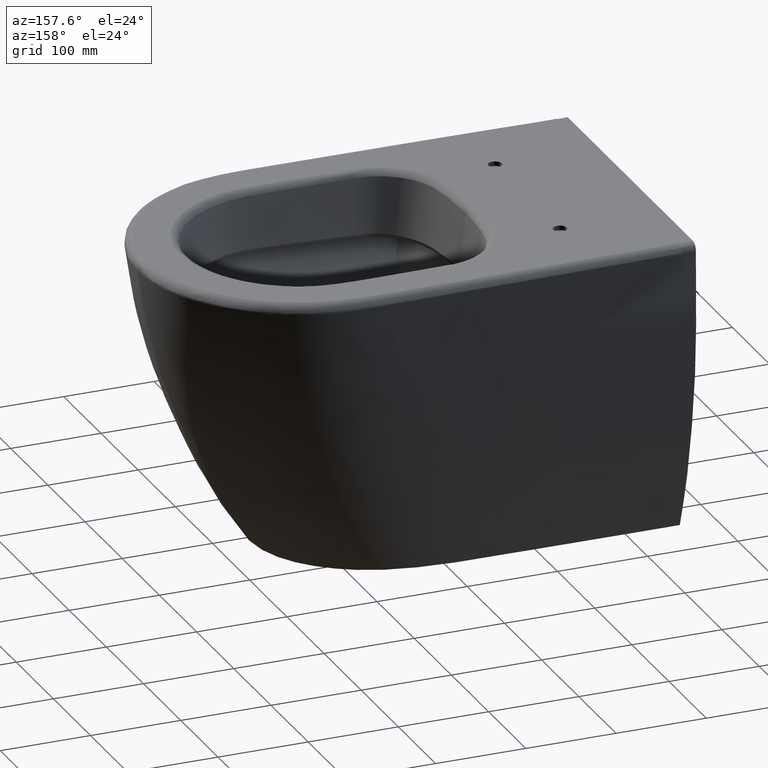
[diagram: clean part render]
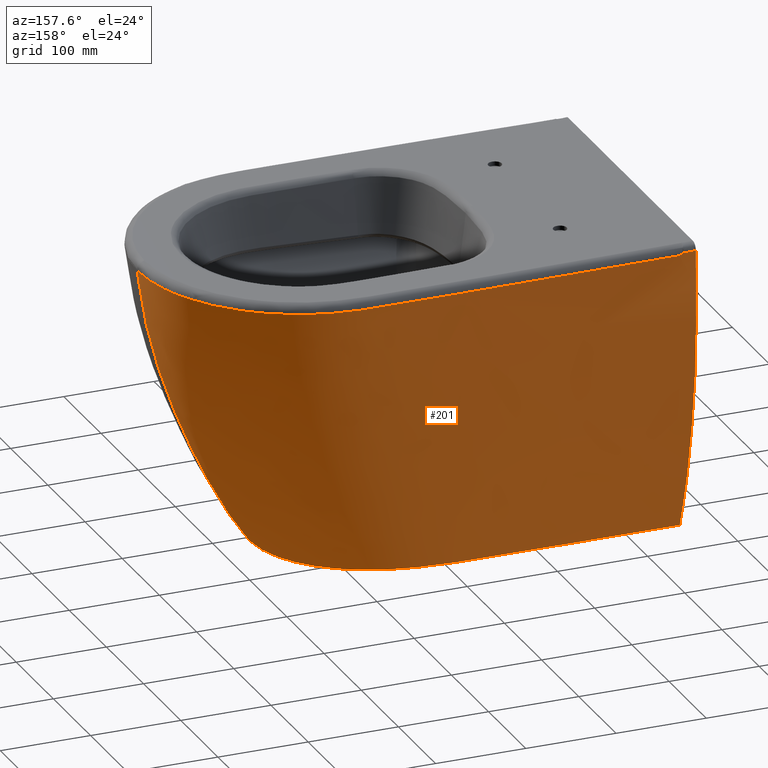
[diagram: same view with one face highlighted and labeled with its STEP entity id]
A machine part, auxiliary view. The second image highlights one B-rep face of the part: STEP entity #201.
In plain terms, the highlighted face is a freeform B-spline surface patch.
Its self-contained STEP definition (entity closure, byte-faithful):
#107=B_SPLINE_SURFACE_WITH_KNOTS('',3,3,((#12357,#12358,#12359,#12360,#12361,
#12362,#12363,#12364,#12365,#12366,#12367,#12368,#12369,#12370,#12371,#12372,
#12373,#12374,#12375,#12376,#12377),(#12378,#12379,#12380,#12381,#12382,
#12383,#12384,#12385,#12386,#12387,#12388,#12389,#12390,#12391,#12392,#12393,
#12394,#12395,#12396,#12397,#12398),(#12399,#12400,#12401,#12402,#12403,
#12404,#12405,#12406,#12407,#12408,#12409,#12410,#12411,#12412,#12413,#12414,
#12415,#12416,#12417,#12418,#12419),(#12420,#12421,#12422,#12423,#12424,
#12425,#12426,#12427,#12428,#12429,#12430,#12431,#12432,#12433,#12434,#12435,
#12436,#12437,#12438,#12439,#12440),(#12441,#12442,#12443,#12444,#12445,
#12446,#12447,#12448,#12449,#12450,#12451,#12452,#12453,#12454,#12455,#12456,
#12457,#12458,#12459,#12460,#12461),(#12462,#12463,#12464,#12465,#12466,
#12467,#12468,#12469,#12470,#12471,#12472,#12473,#12474,#12475,#12476,#12477,
#12478,#12479,#12480,#12481,#12482),(#12483,#12484,#12485,#12486,#12487,
#12488,#12489,#12490,#12491,#12492,#12493,#12494,#12495,#12496,#12497,#12498,
#12499,#12500,#12501,#12502,#12503),(#12504,#12505,#12506,#12507,#12508,
#12509,#12510,#12511,#12512,#12513,#12514,#12515,#12516,#12517,#12518,#12519,
#12520,#12521,#12522,#12523,#12524),(#12525,#12526,#12527,#12528,#12529,
#12530,#12531,#12532,#12533,#12534,#12535,#12536,#12537,#12538,#12539,#12540,
#12541,#12542,#12543,#12544,#12545),(#12546,#12547,#12548,#12549,#12550,
#12551,#12552,#12553,#12554,#12555,#12556,#12557,#12558,#12559,#12560,#12561,
#12562,#12563,#12564,#12565,#12566),(#12567,#12568,#12569,#12570,#12571,
#12572,#12573,#12574,#12575,#12576,#12577,#12578,#12579,#12580,#12581,#12582,
#12583,#12584,#12585,#12586,#12587),(#12588,#12589,#12590,#12591,#12592,
#12593,#12594,#12595,#12596,#12597,#12598,#12599,#12600,#12601,#12602,#12603,
#12604,#12605,#12606,#12607,#12608),(#12609,#12610,#12611,#12612,#12613,
#12614,#12615,#12616,#12617,#12618,#12619,#12620,#12621,#12622,#12623,#12624,
#12625,#12626,#12627,#12628,#12629),(#12630,#12631,#12632,#12633,#12634,
#12635,#12636,#12637,#12638,#12639,#12640,#12641,#12642,#12643,#12644,#12645,
#12646,#12647,#12648,#12649,#12650),(#12651,#12652,#12653,#12654,#12655,
#12656,#12657,#12658,#12659,#12660,#12661,#12662,#12663,#12664,#12665,#12666,
#12667,#12668,#12669,#12670,#12671),(#12672,#12673,#12674,#12675,#12676,
#12677,#12678,#12679,#12680,#12681,#12682,#12683,#12684,#12685,#12686,#12687,
#12688,#12689,#12690,#12691,#12692),(#12693,#12694,#12695,#12696,#12697,
#12698,#12699,#12700,#12701,#12702,#12703,#12704,#12705,#12706,#12707,#12708,
#12709,#12710,#12711,#12712,#12713),(#12714,#12715,#12716,#12717,#12718,
#12719,#12720,#12721,#12722,#12723,#12724,#12725,#12726,#12727,#12728,#12729,
#12730,#12731,#12732,#12733,#12734)),.UNSPECIFIED.,.F.,.F.,.F.,(4,1,1,1,
1,1,1,1,1,1,1,1,1,1,1,4),(4,1,1,1,1,1,1,1,1,1,1,1,1,1,1,3,4),(0.,0.0602111962712651,
0.0903167944068976,0.12042239254253,0.182507157675475,0.24459192280842,
0.306676687941365,0.36876145307431,0.430846218207255,0.461888600773728,
0.4929309833402,0.61710051360609,0.74127004387198,0.86543957413787,0.989609104403761,
1.),(0.,0.026636169053336,0.0623625613361962,0.118244261278682,0.230007661163653,
0.341771061048624,0.453534460933596,0.509416160876081,0.565297860818566,
0.677061260703538,0.732942960646023,0.788824660588509,0.816765510559751,
0.844706360530994,0.872647210502237,0.891752457481277,1.),.UNSPECIFIED.);
#201=ADVANCED_FACE('',(#279),#107,.F.);
#279=FACE_OUTER_BOUND('',#358,.T.);
#358=EDGE_LOOP('',(#652,#653,#654,#655,#656,#657,#658,#659,#660,#661,#662,
#663));
#652=ORIENTED_EDGE('',*,*,#1044,.F.);
#653=ORIENTED_EDGE('',*,*,#1072,.T.);
#654=ORIENTED_EDGE('',*,*,#1073,.F.);
#655=ORIENTED_EDGE('',*,*,#1074,.F.);
#656=ORIENTED_EDGE('',*,*,#1075,.F.);
#657=ORIENTED_EDGE('',*,*,#1076,.T.);
#658=ORIENTED_EDGE('',*,*,#1077,.T.);
#659=ORIENTED_EDGE('',*,*,#1078,.T.);
#660=ORIENTED_EDGE('',*,*,#961,.F.);
#661=ORIENTED_EDGE('',*,*,#960,.F.);
#662=ORIENTED_EDGE('',*,*,#959,.F.);
#663=ORIENTED_EDGE('',*,*,#1079,.T.);
#826=VERTEX_POINT('',#2615);
#827=VERTEX_POINT('',#2626);
#828=VERTEX_POINT('',#2635);
#829=VERTEX_POINT('',#2640);
#881=VERTEX_POINT('',#11126);
#883=VERTEX_POINT('',#11135);
#901=VERTEX_POINT('',#12283);
#902=VERTEX_POINT('',#12288);
#903=VERTEX_POINT('',#12293);
#904=VERTEX_POINT('',#12298);
#905=VERTEX_POINT('',#12303);
#906=VERTEX_POINT('',#12310);
#959=EDGE_CURVE('',#826,#827,#1149,.T.);
#960=EDGE_CURVE('',#827,#828,#1150,.T.);
#961=EDGE_CURVE('',#828,#829,#1151,.T.);
#1044=EDGE_CURVE('',#883,#881,#1220,.T.);
#1072=EDGE_CURVE('',#883,#901,#1241,.T.);
#1073=EDGE_CURVE('',#902,#901,#1242,.T.);
#1074=EDGE_CURVE('',#903,#902,#1243,.T.);
#1075=EDGE_CURVE('',#904,#903,#1244,.T.);
#1076=EDGE_CURVE('',#904,#905,#1245,.T.);
#1077=EDGE_CURVE('',#905,#906,#1246,.T.);
#1078=EDGE_CURVE('',#906,#829,#1247,.T.);
#1079=EDGE_CURVE('',#826,#881,#1248,.T.);
#1149=B_SPLINE_CURVE_WITH_KNOTS('',3,(#2616,#2617,#2618,#2619,#2620,#2621,
#2622,#2623,#2624,#2625),.UNSPECIFIED.,.F.,.F.,(4,2,2,2,4),(0.,0.25,0.499999999999999,
0.75,1.),.UNSPECIFIED.);
#1150=B_SPLINE_CURVE_WITH_KNOTS('',3,(#2627,#2628,#2629,#2630,#2631,#2632,
#2633,#2634),.UNSPECIFIED.,.F.,.F.,(4,1,1,1,1,4),(0.,0.271440327380571,
0.553746948231337,0.836053569082102,0.977206879507486,1.),.UNSPECIFIED.);
#1151=B_SPLINE_CURVE_WITH_KNOTS('',3,(#2636,#2637,#2638,#2639),
 .UNSPECIFIED.,.F.,.F.,(4,4),(0.,1.),.UNSPECIFIED.);
#1220=B_SPLINE_CURVE_WITH_KNOTS('',3,(#11136,#11137,#11138,#11139,#11140,
#11141,#11142,#11143,#11144,#11145,#11146,#11147,#11148,#11149,#11150,#11151,
#11152,#11153,#11154,#11155),.UNSPECIFIED.,.F.,.F.,(4,2,2,2,2,2,2,2,2,4),
(0.,0.125,0.25,0.375,0.5,0.625,0.75,0.875,0.9375,1.),.UNSPECIFIED.);
#1241=B_SPLINE_CURVE_WITH_KNOTS('',3,(#12276,#12277,#12278,#12279,#12280,
#12281,#12282),.UNSPECIFIED.,.F.,.F.,(4,3,4),(0.,0.190843354995714,1.),
 .UNSPECIFIED.);
#1242=B_SPLINE_CURVE_WITH_KNOTS('',3,(#12284,#12285,#12286,#12287),
 .UNSPECIFIED.,.F.,.F.,(4,4),(0.,1.),.UNSPECIFIED.);
#1243=B_SPLINE_CURVE_WITH_KNOTS('',3,(#12289,#12290,#12291,#12292),
 .UNSPECIFIED.,.F.,.F.,(4,4),(0.,1.),.UNSPECIFIED.);
#1244=B_SPLINE_CURVE_WITH_KNOTS('',3,(#12294,#12295,#12296,#12297),
 .UNSPECIFIED.,.F.,.F.,(4,4),(0.,1.),.UNSPECIFIED.);
#1245=B_SPLINE_CURVE_WITH_KNOTS('',3,(#12299,#12300,#12301,#12302),
 .UNSPECIFIED.,.F.,.F.,(4,4),(0.,1.),.UNSPECIFIED.);
#1246=B_SPLINE_CURVE_WITH_KNOTS('',3,(#12304,#12305,#12306,#12307,#12308,
#12309),.UNSPECIFIED.,.F.,.F.,(4,2,4),(0.,0.5,1.),.UNSPECIFIED.);
#1247=B_SPLINE_CURVE_WITH_KNOTS('',3,(#12311,#12312,#12313,#12314,#12315,
#12316,#12317,#12318,#12319,#12320,#12321,#12322,#12323,#12324,#12325,#12326,
#12327,#12328,#12329,#12330),.UNSPECIFIED.,.F.,.F.,(4,2,2,2,2,2,2,2,2,4),
(0.,0.125,0.250000000000001,0.312500000000001,0.375000000000001,0.5,0.625,
0.75,0.875,1.),.UNSPECIFIED.);
#1248=B_SPLINE_CURVE_WITH_KNOTS('',3,(#12331,#12332,#12333,#12334,#12335,
#12336,#12337,#12338,#12339,#12340,#12341,#12342,#12343,#12344,#12345,#12346,
#12347,#12348,#12349,#12350,#12351,#12352,#12353,#12354,#12355,#12356),
 .UNSPECIFIED.,.F.,.F.,(4,2,2,2,2,2,2,2,2,2,2,2,4),(0.,0.0624999999999999,
0.0937499999999999,0.125,0.1875,0.25,0.3125,0.375,0.5,0.625,0.75,0.875,
1.),.UNSPECIFIED.);
#2615=CARTESIAN_POINT('',(400.628639834046,5.64335701108178E-17,-320.775094882709));
#2616=CARTESIAN_POINT('',(400.628639834045,8.70008715948573E-16,-320.775094882709));
#2617=CARTESIAN_POINT('',(409.776042912347,8.70008715948573E-16,-308.811271104255));
#2618=CARTESIAN_POINT('',(417.737752805566,-6.24475040363233E-16,-296.229831727245));
#2619=CARTESIAN_POINT('',(433.022802704373,-6.24475040363233E-16,-270.734432549555));
#2620=CARTESIAN_POINT('',(440.187790185651,1.61836232484775E-16,-257.737988519129));
#2621=CARTESIAN_POINT('',(453.4761899214,1.61836232484775E-16,-231.202554447863));
#2622=CARTESIAN_POINT('',(459.643202185204,1.82915441470586E-15,-217.6862752113));
#2623=CARTESIAN_POINT('',(471.63191136005,1.82915441470586E-15,-190.473845460369));
#2624=CARTESIAN_POINT('',(477.440444717971,-1.43797077686213E-17,-176.770838184199));
#2625=CARTESIAN_POINT('',(482.877540709718,-1.43797077686218E-17,-162.874352937402));
#2626=CARTESIAN_POINT('',(482.877540724818,0.,-162.874352893561));
#2627=CARTESIAN_POINT('',(482.877540729852,-0.000902396373594837,-162.874352878948));
#2628=CARTESIAN_POINT('',(488.378909286327,0.000131159255257056,-148.813595983276));
#2629=CARTESIAN_POINT('',(498.691502628054,0.00104992281016019,-120.008962347818));
#2630=CARTESIAN_POINT('',(511.108471021795,0.000491671192507205,-76.4113082221874));
#2631=CARTESIAN_POINT('',(518.928829086009,-0.000590210822638392,-39.4194177088888));
#2632=CARTESIAN_POINT('',(522.351266915228,-0.000893031970937361,-15.9130226147364));
#2633=CARTESIAN_POINT('',(523.337000570429,-0.00101181585323927,-7.25622095003563));
#2634=CARTESIAN_POINT('',(523.467998574197,-0.00102335954880126,-6.05231426838299));
#2635=CARTESIAN_POINT('',(523.467998575709,0.,-6.05231426355347));
#2636=CARTESIAN_POINT('',(523.467998578231,-2.72536205553256E-5,-6.05231425898843));
#2637=CARTESIAN_POINT('',(523.78181036432,-5.43625522501331E-5,-3.16830022032948));
#2638=CARTESIAN_POINT('',(524.06092388421,-5.29698824228578E-5,-0.282162185941136));
#2639=CARTESIAN_POINT('',(524.29439071496,4.72700664321184E-5,2.60562981307717));
#2640=CARTESIAN_POINT('',(524.26182770844,-3.54791048557261E-6,2.59843476176186));
#11126=CARTESIAN_POINT('',(-22.2303729996665,132.48781332772,-320.771140741786));
#11135=CARTESIAN_POINT('',(-22.2303729984039,175.729744294228,4.86899509689171));
#11136=CARTESIAN_POINT('',(-22.2303729984039,175.729744294228,4.86899509689172));
#11137=CARTESIAN_POINT('',(-22.2303729983862,176.19104066119,-8.90522365990335));
#11138=CARTESIAN_POINT('',(-22.2303729983765,176.397434845614,-22.6864145327804));
#11139=CARTESIAN_POINT('',(-22.2303729983654,176.537885043166,-50.2562453059414));
#11140=CARTESIAN_POINT('',(-22.2303729983635,176.490781072842,-64.0429845946626));
#11141=CARTESIAN_POINT('',(-22.2303729983701,176.06097823078,-91.5924114665911));
#11142=CARTESIAN_POINT('',(-22.2303729983791,175.663362108519,-105.357395053213));
#11143=CARTESIAN_POINT('',(-22.2303729984306,173.788046580091,-132.829846068431));
#11144=CARTESIAN_POINT('',(-22.2303729984732,172.307212573598,-146.537146574558));
#11145=CARTESIAN_POINT('',(-22.2303729985807,168.62924541377,-173.913603514465));
#11146=CARTESIAN_POINT('',(-22.2303729986431,166.512177599219,-187.537917639426));
#11147=CARTESIAN_POINT('',(-22.2303729987797,161.897245766288,-214.696735867029));
#11148=CARTESIAN_POINT('',(-22.2303729988586,159.247194525369,-228.196214475802));
#11149=CARTESIAN_POINT('',(-22.2303729990472,152.959022366241,-254.964639610759));
#11150=CARTESIAN_POINT('',(-22.2303729991582,149.278963852838,-268.223801441207));
#11151=CARTESIAN_POINT('',(-22.2303729993395,143.281935720533,-288.00126655384));
#11152=CARTESIAN_POINT('',(-22.2303729994027,141.194244765974,-294.573064128176));
#11153=CARTESIAN_POINT('',(-22.2303729995308,136.963680721457,-307.703784423092));
#11154=CARTESIAN_POINT('',(-22.2303729995948,134.852155618927,-314.282905629986));
#11155=CARTESIAN_POINT('',(-22.2303729996666,132.487813327721,-320.771140741786));
#12276=CARTESIAN_POINT('',(-22.2303729984036,175.729744294228,4.86899509689169));
#12277=CARTESIAN_POINT('',(-21.3048173908752,175.755699238568,4.86676286527942));
#12278=CARTESIAN_POINT('',(-20.3792569728144,175.781485292147,4.8645548644766));
#12279=CARTESIAN_POINT('',(-19.4536918043126,175.80710116549,4.86237071469702));
#12280=CARTESIAN_POINT('',(-15.5293896819711,175.915709861611,4.85311014190623));
#12281=CARTESIAN_POINT('',(-11.6050006142291,176.021259890736,4.84427709292988));
#12282=CARTESIAN_POINT('',(-7.68052969221788,176.123657960748,4.83582889540964));
#12283=CARTESIAN_POINT('',(-7.68053676776358,176.12413330449,4.83584393224029));
#12284=CARTESIAN_POINT('',(-7.61334321183145,176.128526001442,4.72952513190465));
#12285=CARTESIAN_POINT('',(-7.63575087921406,176.127452449413,4.76488095429346));
#12286=CARTESIAN_POINT('',(-7.65815253467435,176.126147820601,4.80032670577673));
#12287=CARTESIAN_POINT('',(-7.68054807888066,176.124608569324,4.83585843711145));
#12288=CARTESIAN_POINT('',(-7.61334321183139,176.128526001442,4.72952513190308));
#12289=CARTESIAN_POINT('',(-7.01756490625343,176.143986686292,4.72954892514028));
#12290=CARTESIAN_POINT('',(-7.2161579199508,176.138843196801,4.7294689407645));
#12291=CARTESIAN_POINT('',(-7.41475071501025,176.133689633777,4.72946126851022));
#12292=CARTESIAN_POINT('',(-7.6133432118313,176.128526001442,4.72952513189995));
#12293=CARTESIAN_POINT('',(-7.01756490625346,176.143986686292,4.72954892513131));
#12294=CARTESIAN_POINT('',(-6.83787029182538,176.149175962882,4.55228968783466));
#12295=CARTESIAN_POINT('',(-6.89778505728019,176.148086345764,4.61111160044379));
#12296=CARTESIAN_POINT('',(-6.95768342711435,176.146362289532,4.67020395635527));
#12297=CARTESIAN_POINT('',(-7.01756490625699,176.143986686292,4.7295489251349));
#12298=CARTESIAN_POINT('',(-6.83514480361678,176.15069820529,4.54964804489694));
#12299=CARTESIAN_POINT('',(-6.83807541619407,176.153789354779,4.55232847102999));
#12300=CARTESIAN_POINT('',(-5.47285512406699,176.22691437192,3.24932161279982));
#12301=CARTESIAN_POINT('',(-3.85029086655371,176.285072861412,2.5979906465358));
#12302=CARTESIAN_POINT('',(-1.96809332520587,176.331561085723,2.59796293417492));
#12303=CARTESIAN_POINT('',(-1.96712166298018,176.2922201629,2.59690232176867));
#12304=CARTESIAN_POINT('',(-1.96809332515735,176.331561083751,2.59796300737321));
#12305=CARTESIAN_POINT('',(37.385923268256,177.303618845929,2.59528725773806));
#12306=CARTESIAN_POINT('',(76.7433563433646,177.915585688464,2.593447612031));
#12307=CARTESIAN_POINT('',(155.462030927747,178.590505869571,2.59226710100287));
#12308=CARTESIAN_POINT('',(194.821653129991,178.711936078653,2.5927154430842));
#12309=CARTESIAN_POINT('',(234.170130608137,178.946505411088,2.59485886225804));
#12310=CARTESIAN_POINT('',(234.170357548578,178.908431965514,2.59537293309887));
#12311=CARTESIAN_POINT('',(234.170130608137,178.946505411088,2.59485886225805));
#12312=CARTESIAN_POINT('',(250.507396348981,179.043856084953,2.59269823873262));
#12313=CARTESIAN_POINT('',(266.843107911849,179.149079331765,2.59079021890847));
#12314=CARTESIAN_POINT('',(299.514613734416,179.288932552554,2.58712297015512));
#12315=CARTESIAN_POINT('',(315.853833433841,179.393092049306,2.58530556662324));
#12316=CARTESIAN_POINT('',(340.347368473157,179.146854999687,2.58270615653085));
#12317=CARTESIAN_POINT('',(348.518614201967,178.919538916846,2.58186126534863));
#12318=CARTESIAN_POINT('',(364.822050721332,177.644174824071,2.58028579330045));
#12319=CARTESIAN_POINT('',(372.941998228306,176.619699070345,2.57956607463427));
#12320=CARTESIAN_POINT('',(396.964723429994,171.904376644099,2.57786097475059));
#12321=CARTESIAN_POINT('',(412.522699392129,166.401196316589,2.57742954098769));
#12322=CARTESIAN_POINT('',(441.583801013942,151.438474556009,2.5773445172422));
#12323=CARTESIAN_POINT('',(455.08589741889,141.991071354018,2.57768830270011));
#12324=CARTESIAN_POINT('',(479.025773134061,119.763364237484,2.57903823129776));
#12325=CARTESIAN_POINT('',(489.477417200683,107.010832408438,2.5800424408887));
#12326=CARTESIAN_POINT('',(506.558311675087,79.18334131533,2.58251137049293));
#12327=CARTESIAN_POINT('',(513.150448954121,64.0801138717949,2.58395655402294));
#12328=CARTESIAN_POINT('',(522.006493789404,32.6467452883964,2.58713835256435));
#12329=CARTESIAN_POINT('',(524.288652895415,16.3223465855919,2.58901428624617));
#12330=CARTESIAN_POINT('',(524.293189537764,2.09045163728495E-5,2.59077745999418));
#12331=CARTESIAN_POINT('',(400.628639834046,-1.52164966309183E-12,-320.775094882708));
#12332=CARTESIAN_POINT('',(400.582908084283,10.3575143812365,-320.7747846396));
#12333=CARTESIAN_POINT('',(399.190553729413,20.487518368961,-320.774481256922));
#12334=CARTESIAN_POINT('',(395.151928119921,35.3530581220679,-320.774036117747));
#12335=CARTESIAN_POINT('',(393.457021900606,40.2796356076709,-320.773888606596));
#12336=CARTESIAN_POINT('',(389.46548838624,49.7401850312151,-320.773605364646));
#12337=CARTESIAN_POINT('',(387.168218390458,54.3042734671234,-320.773468731773));
#12338=CARTESIAN_POINT('',(379.355968968171,67.4891996080772,-320.773074061));
#12339=CARTESIAN_POINT('',(372.843361272421,75.6771684578214,-320.772829022914));
#12340=CARTESIAN_POINT('',(358.404481518994,90.1567579279955,-320.772395797117));
#12341=CARTESIAN_POINT('',(350.427218154709,96.5502606666723,-320.772204559401));
#12342=CARTESIAN_POINT('',(333.079853806648,107.781828302622,-320.771868722152));
#12343=CARTESIAN_POINT('',(323.984833840732,112.454991810909,-320.771729052674));
#12344=CARTESIAN_POINT('',(305.081382643779,120.072527343698,-320.771501521416));
#12345=CARTESIAN_POINT('',(295.190079460606,122.994391122757,-320.771414336649));
#12346=CARTESIAN_POINT('',(265.048693238085,129.588954746153,-320.771217828264));
#12347=CARTESIAN_POINT('',(244.610333201954,131.069094080154,-320.771174186073));
#12348=CARTESIAN_POINT('',(203.575177578762,132.68664652581,-320.771127126526));
#12349=CARTESIAN_POINT('',(183.042636642287,132.649856148384,-320.771128925008));
#12350=CARTESIAN_POINT('',(141.987446537586,132.497705030081,-320.771134875102));
#12351=CARTESIAN_POINT('',(121.460080625406,132.447676462259,-320.77113706994));
#12352=CARTESIAN_POINT('',(80.4054401420159,132.474470796803,-320.771137659958));
#12353=CARTESIAN_POINT('',(59.8781339162405,132.553838607835,-320.77113597891));
#12354=CARTESIAN_POINT('',(18.823476298005,132.499982024853,-320.771138984712));
#12355=CARTESIAN_POINT('',(-1.70422537244894,132.356753342534,-320.77114397124));
#12356=CARTESIAN_POINT('',(-22.2303729996666,132.487813327721,-320.771140741786));
#12357=CARTESIAN_POINT('',(525.006608159195,-4.01391519920665,15.3277521759176));
#12358=CARTESIAN_POINT('',(524.859772921457,-4.01097604712712,11.7649130268727));
#12359=CARTESIAN_POINT('',(524.414825432815,-4.0042934866924,3.42651614112397));
#12360=CARTESIAN_POINT('',(522.822438972188,-3.99309414748077,-12.3601627946571));
#12361=CARTESIAN_POINT('',(518.880610007701,-3.96937537915891,-39.4194249806988));
#12362=CARTESIAN_POINT('',(511.059091283255,-3.92976203747997,-76.4112005672418));
#12363=CARTESIAN_POINT('',(498.480645793001,-3.86655952548782,-120.575231016623));
#12364=CARTESIAN_POINT('',(485.286211157579,-3.78595314774928,-157.285483020928));
#12365=CARTESIAN_POINT('',(473.290307986798,-3.70920834063708,-186.456983131481));
#12366=CARTESIAN_POINT('',(460.676211626021,-3.62716483608895,-215.473746647207));
#12367=CARTESIAN_POINT('',(447.196598964486,-3.52976677758821,-244.588841769784));
#12368=CARTESIAN_POINT('',(431.562953814585,-3.40938665333712,-273.200962417887));
#12369=CARTESIAN_POINT('',(421.130328595219,-3.32837270895652,-290.577042127422));
#12370=CARTESIAN_POINT('',(412.310347067907,-3.25693048174743,-304.401444972866));
#12371=CARTESIAN_POINT('',(405.234626398973,-3.20152843884576,-314.698059191374));
#12372=CARTESIAN_POINT('',(398.39492750919,-3.15708835121497,-323.730028344669));
#12373=CARTESIAN_POINT('',(393.97393041772,-3.13366007179784,-329.132267593525));
#12374=CARTESIAN_POINT('',(392.159360887001,-3.12766123458437,-331.317544354975));
#12375=CARTESIAN_POINT('',(381.878274615509,-3.09367269797763,-343.699003721072));
#12376=CARTESIAN_POINT('',(371.597188344017,-3.05968416137088,-356.08046308717));
#12377=CARTESIAN_POINT('',(361.316102072524,-3.02569562476414,-368.461922453267));
#12378=CARTESIAN_POINT('',(525.270541492802,9.21197231316651,15.3297213451234));
#12379=CARTESIAN_POINT('',(525.137298301724,9.20666360713581,11.7661207154655));
#12380=CARTESIAN_POINT('',(524.717844981545,9.19391582695508,3.42633491597357));
#12381=CARTESIAN_POINT('',(523.126959863301,9.1673867368194,-12.3600620935714));
#12382=CARTESIAN_POINT('',(519.194524022894,9.11191506514989,-39.4194598302459));
#12383=CARTESIAN_POINT('',(511.378936098368,9.01763186521839,-76.4118853090115));
#12384=CARTESIAN_POINT('',(498.801938527215,8.87082019404421,-120.577218816064));
#12385=CARTESIAN_POINT('',(485.602178691066,8.68981398055945,-157.288934162271));
#12386=CARTESIAN_POINT('',(473.599820920325,8.52313353156097,-186.461771486255));
#12387=CARTESIAN_POINT('',(460.976800556809,8.34883143789287,-215.47989317982));
#12388=CARTESIAN_POINT('',(447.485296250394,8.14983711679861,-244.596303532099));
#12389=CARTESIAN_POINT('',(431.834593988624,7.90645089395269,-273.210104106815));
#12390=CARTESIAN_POINT('',(421.390483102702,7.74945493061604,-290.586592769308));
#12391=CARTESIAN_POINT('',(412.559445767005,7.61383738682666,-304.411965471004));
#12392=CARTESIAN_POINT('',(405.474554207825,7.49865788556574,-314.708560057878));
#12393=CARTESIAN_POINT('',(398.624282699294,7.37722893403469,-323.742582438968));
#12394=CARTESIAN_POINT('',(394.198957712832,7.29379953764333,-329.142152409976));
#12395=CARTESIAN_POINT('',(392.379203667357,7.26100977038238,-331.332702902066));
#12396=CARTESIAN_POINT('',(382.068742691517,7.07522773209454,-343.744042456695));
#12397=CARTESIAN_POINT('',(371.758281715677,6.8894456938067,-356.155382011324));
#12398=CARTESIAN_POINT('',(361.447820739838,6.70366365551886,-368.566721565953));
#12399=CARTESIAN_POINT('',(523.506022078017,29.1011619903675,15.3291368014757));
#12400=CARTESIAN_POINT('',(523.36189268021,29.0849980850708,11.7657673943906));
#12401=CARTESIAN_POINT('',(522.920848356549,29.0461126442103,3.42643213527199));
#12402=CARTESIAN_POINT('',(521.317863718431,28.9646760368904,-12.3597827377711));
#12403=CARTESIAN_POINT('',(517.362519146963,28.7889100104494,-39.4186297773947));
#12404=CARTESIAN_POINT('',(509.524187308025,28.4909681165145,-76.4079600961479));
#12405=CARTESIAN_POINT('',(496.932155527471,28.0275758391439,-120.568934059182));
#12406=CARTESIAN_POINT('',(483.730305093138,27.4534482848354,-157.275672750671));
#12407=CARTESIAN_POINT('',(471.729796243857,26.9223081594375,-186.443223169984));
#12408=CARTESIAN_POINT('',(459.111212606099,26.3644050096186,-215.456709943212));
#12409=CARTESIAN_POINT('',(445.628494533106,25.7234418709792,-244.567626158368));
#12410=CARTESIAN_POINT('',(429.999625230623,24.9379550208607,-273.173670228627));
#12411=CARTESIAN_POINT('',(419.569566283677,24.4274480114252,-290.546478449694));
#12412=CARTESIAN_POINT('',(410.754501029073,23.9834233471716,-304.367976175579));
#12413=CARTESIAN_POINT('',(403.686249050283,23.6157606968004,-314.662156314494));
#12414=CARTESIAN_POINT('',(396.854410939328,23.2441147888524,-323.695322131631));
#12415=CARTESIAN_POINT('',(392.437073607297,23.007039010011,-329.097693367498));
#12416=CARTESIAN_POINT('',(390.6226797589,22.9059837520337,-331.285648639827));
#12417=CARTESIAN_POINT('',(380.342588877817,22.3334194011704,-343.682284057853));
#12418=CARTESIAN_POINT('',(370.062497996735,21.760855050307,-356.078919475878));
#12419=CARTESIAN_POINT('',(359.782407115652,21.1882906994437,-368.475554893904));
#12420=CARTESIAN_POINT('',(516.863580509174,54.7598630245273,15.3319011717947));
#12421=CARTESIAN_POINT('',(516.708771495454,54.7257712543644,11.7675678984883));
#12422=CARTESIAN_POINT('',(516.242360564956,54.6434331602508,3.42649296876812));
#12423=CARTESIAN_POINT('',(514.588594496194,54.4686636888456,-12.3591940990632));
#12424=CARTESIAN_POINT('',(510.560222443365,54.1059651490198,-39.4163550001831));
#12425=CARTESIAN_POINT('',(502.652758984958,53.5016811009073,-76.3963249180363));
#12426=CARTESIAN_POINT('',(490.020433206064,52.5767972792956,-120.543719337092));
#12427=CARTESIAN_POINT('',(476.823244659164,51.4512412320054,-157.234089975727));
#12428=CARTESIAN_POINT('',(464.850159710327,50.4159352417849,-186.383091517271));
#12429=CARTESIAN_POINT('',(452.266388875923,49.3304194977345,-215.37996242433));
#12430=CARTESIAN_POINT('',(438.838178567614,48.0893012213687,-244.470609616434));
#12431=CARTESIAN_POINT('',(423.307732317589,46.5845564794758,-273.046915008482));
#12432=CARTESIAN_POINT('',(412.942695165469,45.6058287572422,-290.40444885916));
#12433=CARTESIAN_POINT('',(404.194853153274,44.7593045090745,-304.210098012265));
#12434=CARTESIAN_POINT('',(397.194215426205,44.0663651427872,-314.490078119536));
#12435=CARTESIAN_POINT('',(390.434444400246,43.3762740274675,-323.517867484381));
#12436=CARTESIAN_POINT('',(386.055229619614,42.9372959763371,-328.921478915119));
#12437=CARTESIAN_POINT('',(384.256032863397,42.7528327359721,-331.111330361792));
#12438=CARTESIAN_POINT('',(374.062046489821,41.7076909235445,-343.518709227058));
#12439=CARTESIAN_POINT('',(363.868060116245,40.6625491111169,-355.926088092323));
#12440=CARTESIAN_POINT('',(353.674073742668,39.6174072986893,-368.333466957588));
#12441=CARTESIAN_POINT('',(507.331673130655,79.9339620555225,15.334908369965));
#12442=CARTESIAN_POINT('',(507.157837348021,79.8773511622357,11.7695230499378));
#12443=CARTESIAN_POINT('',(506.648677943809,79.7421778724682,3.42662524189599));
#12444=CARTESIAN_POINT('',(504.927167433733,79.4664015864082,-12.3577796360723));
#12445=CARTESIAN_POINT('',(500.798382914285,78.8931419371603,-39.4122357649864));
#12446=CARTESIAN_POINT('',(492.791907860011,77.9541854040303,-76.3775453911019));
#12447=CARTESIAN_POINT('',(480.104566903209,76.5405510278001,-120.503749589108));
#12448=CARTESIAN_POINT('',(466.912365391355,74.8448773762244,-157.168721761422));
#12449=CARTESIAN_POINT('',(454.965519986368,73.2960596008991,-186.289323756327));
#12450=CARTESIAN_POINT('',(442.418635583931,71.6747952200844,-215.260332735698));
#12451=CARTESIAN_POINT('',(429.048604984776,69.830223623319,-244.319191004012));
#12452=CARTESIAN_POINT('',(413.636213890743,67.6120996705138,-272.847212402997));
#12453=CARTESIAN_POINT('',(403.34674993959,66.1704196405107,-290.17949799546));
#12454=CARTESIAN_POINT('',(394.68074966574,64.9294539904117,-303.958258392597));
#12455=CARTESIAN_POINT('',(387.766397256585,63.9217071050351,-314.213879073421));
#12456=CARTESIAN_POINT('',(381.102596868147,62.9229724817729,-323.229351960994));
#12457=CARTESIAN_POINT('',(376.771957160606,62.2868403233897,-328.634374880026));
#12458=CARTESIAN_POINT('',(374.993541521482,62.0189299918215,-330.824060308788));
#12459=CARTESIAN_POINT('',(364.917297926032,60.5009891329857,-343.230498540786));
#12460=CARTESIAN_POINT('',(354.841054330582,58.98304827415,-355.636936772785));
#12461=CARTESIAN_POINT('',(344.764810735132,57.4651074153142,-368.043375004783));
#12462=CARTESIAN_POINT('',(489.982368675729,109.287155771547,15.341038566973));
#12463=CARTESIAN_POINT('',(489.775980756469,109.197447692696,11.7735313389118));
#12464=CARTESIAN_POINT('',(489.194411850763,108.980779784019,3.42688218201068));
#12465=CARTESIAN_POINT('',(487.363760468162,108.520841925052,-12.3556313293042));
#12466=CARTESIAN_POINT('',(483.068955751931,107.615076449381,-39.4054192386498));
#12467=CARTESIAN_POINT('',(474.924610539174,106.15557421295,-76.3455986742853));
#12468=CARTESIAN_POINT('',(462.143588210117,104.025525275969,-120.439025137947));
#12469=CARTESIAN_POINT('',(448.952982182681,101.538695173983,-157.058913365898));
#12470=CARTESIAN_POINT('',(437.081464609206,99.2676706564739,-186.130705302894));
#12471=CARTESIAN_POINT('',(424.617347853518,96.8999910861037,-215.057434328897));
#12472=CARTESIAN_POINT('',(411.380793807589,94.2169247513857,-244.06234685639));
#12473=CARTESIAN_POINT('',(396.197353435328,91.0415256442925,-272.505877324097));
#12474=CARTESIAN_POINT('',(386.0603112618,88.9712202993838,-289.794821706657));
#12475=CARTESIAN_POINT('',(377.548941142389,87.2069953581807,-303.525768936285));
#12476=CARTESIAN_POINT('',(370.78916277456,85.7971348633265,-313.734870682416));
#12477=CARTESIAN_POINT('',(364.294673789799,84.415966489624,-322.722994313202));
#12478=CARTESIAN_POINT('',(360.055655928046,83.5244793426565,-328.128449908171));
#12479=CARTESIAN_POINT('',(358.315367830287,83.1500821089545,-330.318396607001));
#12480=CARTESIAN_POINT('',(348.455149322583,81.0288019957735,-342.726315157094));
#12481=CARTESIAN_POINT('',(338.594930814878,78.9075218825925,-355.134233707186));
#12482=CARTESIAN_POINT('',(328.734712307174,76.7862417694115,-367.542152257279));
#12483=CARTESIAN_POINT('',(461.638491781407,139.206771558612,15.3477910212063));
#12484=CARTESIAN_POINT('',(461.400196868244,139.055885510884,11.7780583300117));
#12485=CARTESIAN_POINT('',(460.746969399518,138.700044141162,3.4279165863781));
#12486=CARTESIAN_POINT('',(458.80297978183,138.006277431028,-12.3485054392081));
#12487=CARTESIAN_POINT('',(454.375655206359,136.620791727806,-39.3876432077054));
#12488=CARTESIAN_POINT('',(446.162952183671,134.463461515303,-76.2871575562373));
#12489=CARTESIAN_POINT('',(433.528043636606,131.374722924601,-120.325653755187));
#12490=CARTESIAN_POINT('',(420.633494775425,127.85186084823,-156.887735456043));
#12491=CARTESIAN_POINT('',(409.057907072424,124.692663884686,-185.893799669812));
#12492=CARTESIAN_POINT('',(396.94357743,121.390783131224,-214.764951085554));
#12493=CARTESIAN_POINT('',(384.126655178579,117.686140096357,-243.704327089021));
#12494=CARTESIAN_POINT('',(369.510382960027,113.370610691002,-272.044542793307));
#12495=CARTESIAN_POINT('',(359.749911421445,110.550003597981,-289.286583229281));
#12496=CARTESIAN_POINT('',(351.583754868687,108.172509624052,-302.962001031617));
#12497=CARTESIAN_POINT('',(345.125413122329,106.308423202935,-313.112331036068));
#12498=CARTESIAN_POINT('',(338.94154432012,104.507014981784,-322.066177958925));
#12499=CARTESIAN_POINT('',(334.887512300347,103.324250880005,-327.479928035796));
#12500=CARTESIAN_POINT('',(333.22414125134,102.827696489558,-329.672704174606));
#12501=CARTESIAN_POINT('',(323.799723522046,100.01429174521,-342.096653918897));
#12502=CARTESIAN_POINT('',(314.375305792752,97.2008870008623,-354.520603663189));
#12503=CARTESIAN_POINT('',(304.950888063459,94.3874822565145,-366.944553407481));
#12504=CARTESIAN_POINT('',(427.237382168209,161.827186386552,15.3510379979092));
#12505=CARTESIAN_POINT('',(426.98570012763,161.637786599991,11.780754236504));
#12506=CARTESIAN_POINT('',(426.304219774167,161.181262628057,3.43058085078104));
#12507=CARTESIAN_POINT('',(424.329529964252,160.218798827955,-12.336586515513));
#12508=CARTESIAN_POINT('',(419.932609006427,158.418253813096,-39.3522365181906));
#12509=CARTESIAN_POINT('',(411.90596950593,155.663588324555,-76.2008865717416));
#12510=CARTESIAN_POINT('',(399.691880643377,151.778975674008,-120.171994538871));
#12511=CARTESIAN_POINT('',(387.325797997684,147.415345698865,-156.658187767669));
#12512=CARTESIAN_POINT('',(376.276680915181,143.509522235323,-185.582331350396));
#12513=CARTESIAN_POINT('',(364.733937750094,139.439168771277,-214.383227315273));
#12514=CARTESIAN_POINT('',(352.577150324489,134.88831602493,-243.240832422662));
#12515=CARTESIAN_POINT('',(338.769424030956,129.643992411168,-271.452288395187));
#12516=CARTESIAN_POINT('',(329.547159774339,126.203983463283,-288.635869019283));
#12517=CARTESIAN_POINT('',(321.852306468658,123.329938863234,-302.241248831336));
#12518=CARTESIAN_POINT('',(315.786044384211,121.109915245495,-312.314282946231));
#12519=CARTESIAN_POINT('',(309.995738924825,118.989668041483,-321.216346369085));
#12520=CARTESIAN_POINT('',(306.187845087885,117.574487139255,-326.636958315796));
#12521=CARTESIAN_POINT('',(304.626119092149,116.980533089826,-328.832289137945));
#12522=CARTESIAN_POINT('',(295.77760740782,113.615276085283,-341.270713345386));
#12523=CARTESIAN_POINT('',(286.92909572349,110.250019080741,-353.709137552827));
#12524=CARTESIAN_POINT('',(278.080584039161,106.884762076198,-366.147561760269));
#12525=CARTESIAN_POINT('',(388.611717764464,176.237032470093,15.3543354423947));
#12526=CARTESIAN_POINT('',(388.351910959333,175.994275873374,11.7830963398178));
#12527=CARTESIAN_POINT('',(387.659476565547,175.4223730323,3.43324930289139));
#12528=CARTESIAN_POINT('',(385.723730357607,174.311777436297,-12.3143299990712));
#12529=CARTESIAN_POINT('',(381.457124481104,172.163556404662,-39.3033769639058));
#12530=CARTESIAN_POINT('',(373.783407577997,168.933586278105,-76.0810945756119));
#12531=CARTESIAN_POINT('',(362.255206120168,164.46969698213,-119.973680795708));
#12532=CARTESIAN_POINT('',(350.675583741452,159.4590037535,-156.374464180999));
#12533=CARTESIAN_POINT('',(340.365456917834,155.002628238708,-185.212577744326));
#12534=CARTESIAN_POINT('',(329.625521692499,150.363505556164,-213.941979598805));
#12535=CARTESIAN_POINT('',(318.371700265245,145.201592605525,-242.719040167215));
#12536=CARTESIAN_POINT('',(305.624775552155,139.285461244998,-270.809107710617));
#12537=CARTESIAN_POINT('',(297.112941432136,135.39563477632,-287.945542125285));
#12538=CARTESIAN_POINT('',(290.025139533167,132.166218124994,-301.491390889742));
#12539=CARTESIAN_POINT('',(284.444927573636,129.699629503335,-311.49456819446));
#12540=CARTESIAN_POINT('',(279.129038497251,127.366644130969,-320.350996291127));
#12541=CARTESIAN_POINT('',(275.628880101169,125.789645420769,-325.787454401975));
#12542=CARTESIAN_POINT('',(274.19403227012,125.126787205733,-327.989109469331));
#12543=CARTESIAN_POINT('',(266.064393759308,121.371129249847,-340.463365927603));
#12544=CARTESIAN_POINT('',(257.934755248496,117.615471293961,-352.937622385875));
#12545=CARTESIAN_POINT('',(249.805116737685,113.859813338076,-365.411878844148));
#12546=CARTESIAN_POINT('',(354.515720602314,179.823225468899,15.3454134810083));
#12547=CARTESIAN_POINT('',(354.265133143184,179.609057771473,11.7781990550749));
#12548=CARTESIAN_POINT('',(353.600573391052,179.100639963061,3.43851635519415));
#12549=CARTESIAN_POINT('',(351.76422932954,178.084887816686,-12.284302959325));
#12550=CARTESIAN_POINT('',(347.750695997291,176.098571338144,-39.232502514941));
#12551=CARTESIAN_POINT('',(340.603662726633,173.053158494561,-75.9545758264003));
#12552=CARTESIAN_POINT('',(329.938643944566,168.758664830951,-119.798225180085));
#12553=CARTESIAN_POINT('',(319.256614167261,163.736648757375,-156.1592513007));
#12554=CARTESIAN_POINT('',(309.759890894667,159.206119329337,-184.955215293622));
#12555=CARTESIAN_POINT('',(299.879322146446,154.474822616272,-213.652971112995));
#12556=CARTESIAN_POINT('',(289.549088527162,149.159029378545,-242.395043984907));
#12557=CARTESIAN_POINT('',(277.825461510809,143.012851475664,-270.43311211463));
#12558=CARTESIAN_POINT('',(269.985906924691,138.949381694961,-287.553088083588));
#12559=CARTESIAN_POINT('',(263.45398023726,135.577103165343,-301.072657003551));
#12560=CARTESIAN_POINT('',(258.306316307673,133.010933636727,-311.041982968676));
#12561=CARTESIAN_POINT('',(253.398999669747,130.591005340053,-319.881795932541));
#12562=CARTESIAN_POINT('',(250.164475999335,128.941220617099,-325.336412591028));
#12563=CARTESIAN_POINT('',(248.838415726365,128.246588810046,-327.545300671001));
#12564=CARTESIAN_POINT('',(241.32515165089,124.310906316576,-340.060538323688));
#12565=CARTESIAN_POINT('',(233.811887575414,120.375223823106,-352.575775976375));
#12566=CARTESIAN_POINT('',(226.298623499939,116.439541329636,-365.091013629062));
#12567=CARTESIAN_POINT('',(327.205406371417,179.900132331288,15.3393727331553));
#12568=CARTESIAN_POINT('',(326.975296427609,179.737290219605,11.7751066704063));
#12569=CARTESIAN_POINT('',(326.36250223413,179.351328111387,3.44298574032581));
#12570=CARTESIAN_POINT('',(324.652597058035,178.584698401389,-12.2606197498473));
#12571=CARTESIAN_POINT('',(320.913761299411,176.965950335468,-39.1882814659128));
#12572=CARTESIAN_POINT('',(314.256030556043,174.396854621273,-75.8813444246786));
#12573=CARTESIAN_POINT('',(304.333097167643,170.54107871125,-119.720891117238));
#12574=CARTESIAN_POINT('',(294.397738676295,165.67917016361,-156.073722340274));
#12575=CARTESIAN_POINT('',(285.562401991819,161.207907004452,-184.854947498702));
#12576=CARTESIAN_POINT('',(276.373881411354,156.490457538269,-213.538513793111));
#12577=CARTESIAN_POINT('',(266.774852100534,151.110736378734,-242.266772872537));
#12578=CARTESIAN_POINT('',(255.858989495164,144.794718868004,-270.290518502106));
#12579=CARTESIAN_POINT('',(248.550661188295,140.590282655905,-287.409481965038));
#12580=CARTESIAN_POINT('',(242.457390184246,137.089406321775,-300.923981937416));
#12581=CARTESIAN_POINT('',(237.651068918986,134.425952857676,-310.884612777863));
#12582=CARTESIAN_POINT('',(233.065399401784,131.911383349684,-319.730955071849));
#12583=CARTESIAN_POINT('',(230.040460346028,130.186878554164,-325.206856226176));
#12584=CARTESIAN_POINT('',(228.800181572488,129.458982492869,-327.424565135242));
#12585=CARTESIAN_POINT('',(221.772942959916,125.33482958709,-339.989780318884));
#12586=CARTESIAN_POINT('',(214.745704347343,121.210676681311,-352.554995502526));
#12587=CARTESIAN_POINT('',(207.718465734771,117.086523775531,-365.120210686168));
#12588=CARTESIAN_POINT('',(286.201851693853,179.616537263024,15.3278079673331));
#12589=CARTESIAN_POINT('',(286.00496435341,179.532488457645,11.7699161575636));
#12590=CARTESIAN_POINT('',(285.477258648001,179.325886888353,3.45185704681422));
#12591=CARTESIAN_POINT('',(283.982754373871,178.861473943161,-12.2314661987883));
#12592=CARTESIAN_POINT('',(280.688117978851,177.738857837443,-39.1344484500744));
#12593=CARTESIAN_POINT('',(274.782621883227,175.734569591443,-75.8085815023744));
#12594=CARTESIAN_POINT('',(265.967917913769,172.439414421865,-119.63555426061));
#12595=CARTESIAN_POINT('',(257.13913649562,167.811722779957,-155.982685536082));
#12596=CARTESIAN_POINT('',(249.286932111013,163.411334545005,-184.735753941361));
#12597=CARTESIAN_POINT('',(241.135548316312,158.725304108109,-213.397362274875));
#12598=CARTESIAN_POINT('',(232.640349793604,153.255618433672,-242.105078293545));
#12599=CARTESIAN_POINT('',(222.970624002649,146.707906857358,-270.119669081515));
#12600=CARTESIAN_POINT('',(216.495087348879,142.306594774534,-287.250133654287));
#12601=CARTESIAN_POINT('',(211.098878931392,138.627067907138,-300.774298583661));
#12602=CARTESIAN_POINT('',(206.83978799281,135.82597990872,-310.74228560346));
#12603=CARTESIAN_POINT('',(202.773542658558,133.175614076225,-319.623045106521));
#12604=CARTESIAN_POINT('',(200.089524506099,131.341588573532,-325.146611683713));
#12605=CARTESIAN_POINT('',(198.989186060392,130.566288880588,-327.383571345872));
#12606=CARTESIAN_POINT('',(192.754828932357,126.173553912609,-340.05785848845));
#12607=CARTESIAN_POINT('',(186.520471804322,121.78081894463,-352.732145631027));
#12608=CARTESIAN_POINT('',(180.286114676287,117.38808397665,-365.406432773605));
#12609=CARTESIAN_POINT('',(224.695675118123,178.93398338103,15.3209100294081));
#12610=CARTESIAN_POINT('',(224.55272117276,178.914382295306,11.7686176219049));
#12611=CARTESIAN_POINT('',(224.158782626718,178.858714528081,3.46396766629533));
#12612=CARTESIAN_POINT('',(222.973376885008,178.680809833296,-12.1917147516156));
#12613=CARTESIAN_POINT('',(220.33842831144,177.984483631852,-39.0723944911731));
#12614=CARTESIAN_POINT('',(215.598626629812,176.526306608675,-75.7307727634831));
#12615=CARTESIAN_POINT('',(208.516627272346,173.739810202355,-119.590188400906));
#12616=CARTESIAN_POINT('',(201.408234552941,169.202927621973,-155.946622379408));
#12617=CARTESIAN_POINT('',(195.093733758397,164.773858812984,-184.685083612401));
#12618=CARTESIAN_POINT('',(188.543105705962,160.000438755186,-213.324199261627));
#12619=CARTESIAN_POINT('',(181.74448701608,154.331587031562,-242.01024337439));
#12620=CARTESIAN_POINT('',(173.979590395636,147.397353527275,-270.038138289262));
#12621=CARTESIAN_POINT('',(168.775144913507,142.704875911633,-287.196398416315));
#12622=CARTESIAN_POINT('',(164.437499624814,138.767623075139,-300.750651019075));
#12623=CARTESIAN_POINT('',(161.009270047048,135.773824473355,-310.749881282536));
#12624=CARTESIAN_POINT('',(157.730491819107,132.930827420099,-319.705916685478));
#12625=CARTESIAN_POINT('',(155.563706657216,130.945170881568,-325.308933494501));
#12626=CARTESIAN_POINT('',(154.675252450562,130.100352038108,-327.579292050427));
#12627=CARTESIAN_POINT('',(149.641400513645,125.313731703999,-340.442812453223));
#12628=CARTESIAN_POINT('',(144.607548576728,120.527111369889,-353.30633285602));
#12629=CARTESIAN_POINT('',(139.573696639811,115.74049103578,-366.169853258816));
#12630=CARTESIAN_POINT('',(142.726089990885,178.458262842259,15.3063007408741));
#12631=CARTESIAN_POINT('',(142.626183224382,178.481368666495,11.766179740715));
#12632=CARTESIAN_POINT('',(142.357302140765,178.526093077467,3.48753694273049));
#12633=CARTESIAN_POINT('',(141.588654312436,178.541526908525,-12.1372582582471));
#12634=CARTESIAN_POINT('',(139.842514648738,178.148471683551,-38.9941625997043));
#12635=CARTESIAN_POINT('',(136.670488812571,177.088524461936,-75.6521140652021));
#12636=CARTESIAN_POINT('',(131.935557005087,174.750799473339,-119.552008789463));
#12637=CARTESIAN_POINT('',(127.189809882744,170.296552264618,-155.930755177707));
#12638=CARTESIAN_POINT('',(122.970496101586,165.837787270207,-184.625643986479));
#12639=CARTESIAN_POINT('',(118.628753174511,161.0465987523,-213.227096275256));
#12640=CARTESIAN_POINT('',(114.141529798171,155.229606082267,-241.866036782473));
#12641=CARTESIAN_POINT('',(109.010134688338,147.991040191785,-269.900160180456));
#12642=CARTESIAN_POINT('',(105.570833819108,143.061869158805,-287.096286629116));
#12643=CARTESIAN_POINT('',(102.710473656442,138.925487406776,-300.69487718158));
#12644=CARTESIAN_POINT('',(100.448135827867,135.787738976691,-310.750026842654));
#12645=CARTESIAN_POINT('',(98.2797963483057,132.799523056323,-319.825929763219));
#12646=CARTESIAN_POINT('',(96.842782962124,130.679974457717,-325.549347340987));
#12647=CARTESIAN_POINT('',(96.253576225386,129.777704003306,-327.866649818041));
#12648=CARTESIAN_POINT('',(92.9152168020644,124.665571221961,-340.996147630283));
#12649=CARTESIAN_POINT('',(89.5768573787427,119.553438440616,-354.125645442525));
#12650=CARTESIAN_POINT('',(86.2384979554211,114.441305659271,-367.255143254766));
#12651=CARTESIAN_POINT('',(60.7654575266903,177.587625628572,15.2859230603251));
#12652=CARTESIAN_POINT('',(60.7047100150261,177.644963683935,11.7613524546492));
#12653=CARTESIAN_POINT('',(60.5510653482498,177.770978452062,3.51521538408841));
#12654=CARTESIAN_POINT('',(60.1752374361929,177.949006963418,-12.0768252167267));
#12655=CARTESIAN_POINT('',(59.3018842046239,177.795859248549,-38.9055654932586));
#12656=CARTESIAN_POINT('',(57.7110553627288,177.142478609387,-75.5663039988774));
#12657=CARTESIAN_POINT('',(55.352029818295,175.279624342048,-119.513949787983));
#12658=CARTESIAN_POINT('',(52.9792781721966,170.964157611515,-155.914257507193));
#12659=CARTESIAN_POINT('',(50.8642883901749,166.507977723717,-184.546457618181));
#12660=CARTESIAN_POINT('',(48.6963165560163,161.809006974783,-213.073024696629));
#12661=CARTESIAN_POINT('',(46.4585083720116,155.968141118301,-241.638528355472));
#12662=CARTESIAN_POINT('',(43.8726627012046,148.591142260808,-269.627108054814));
#12663=CARTESIAN_POINT('',(42.1320878545816,143.541687810493,-286.836142968416));
#12664=CARTESIAN_POINT('',(40.6820934745996,139.310246235569,-300.451252391966));
#12665=CARTESIAN_POINT('',(39.5337073513772,136.114333666746,-310.540730672519));
#12666=CARTESIAN_POINT('',(38.4306961680118,133.06481996719,-319.718936267355));
#12667=CARTESIAN_POINT('',(37.6973810099604,130.874554529631,-325.555209441294));
#12668=CARTESIAN_POINT('',(37.3960420282134,129.930402916343,-327.920273353495));
#12669=CARTESIAN_POINT('',(35.6886993136705,124.580977597966,-341.320380490364));
#12670=CARTESIAN_POINT('',(33.9813565991276,119.23155227959,-354.720487627233));
#12671=CARTESIAN_POINT('',(32.2740138845847,113.882126961213,-368.120594764102));
#12672=CARTESIAN_POINT('',(3.80562245692181,176.189278112142,15.2885149760514));
#12673=CARTESIAN_POINT('',(3.79103848210568,176.285534823745,11.7678705589651));
#12674=CARTESIAN_POINT('',(3.75019645371193,176.504775907379,3.53260616537303));
#12675=CARTESIAN_POINT('',(3.62319253328215,176.875163368392,-12.0263823620326));
#12676=CARTESIAN_POINT('',(3.34525483602017,177.0416777555,-38.8295660680339));
#12677=CARTESIAN_POINT('',(2.85563586052181,176.78235823244,-75.4933142451529));
#12678=CARTESIAN_POINT('',(2.1526014601055,175.362714230712,-119.483052247598));
#12679=CARTESIAN_POINT('',(1.44643342439895,171.201054386732,-155.888281829754));
#12680=CARTESIAN_POINT('',(0.815477765582509,166.816785696304,-184.483991081977));
#12681=CARTESIAN_POINT('',(0.171313974455076,162.159917379822,-212.97396540919));
#12682=CARTESIAN_POINT('',(-0.504321954305884,156.277591671357,-241.474066285158));
#12683=CARTESIAN_POINT('',(-1.30516542258291,148.738640748717,-269.450095079335));
#12684=CARTESIAN_POINT('',(-1.85050808438593,143.554688538607,-286.678066146672));
#12685=CARTESIAN_POINT('',(-2.30598767535561,139.208336201427,-300.32190484986));
#12686=CARTESIAN_POINT('',(-2.66518768389026,135.930040106692,-310.453116101504));
#12687=CARTESIAN_POINT('',(-3.00863926337596,132.800424650601,-319.723924653534));
#12688=CARTESIAN_POINT('',(-3.23892477932817,130.524466222648,-325.655640570542));
#12689=CARTESIAN_POINT('',(-3.33342117800925,129.554732036315,-328.052894965369));
#12690=CARTESIAN_POINT('',(-3.8688239888349,124.060359590772,-341.635388681201));
#12691=CARTESIAN_POINT('',(-4.40422679966055,118.565987145228,-355.217882397032));
#12692=CARTESIAN_POINT('',(-4.9396296104862,113.071614699685,-368.800376112864));
#12693=CARTESIAN_POINT('',(-25.7867041163721,175.242275705527,15.2687020434568));
#12694=CARTESIAN_POINT('',(-25.7900788004335,175.381012598701,11.7589428893065));
#12695=CARTESIAN_POINT('',(-25.7957525207767,175.690130349921,3.54558024947752));
#12696=CARTESIAN_POINT('',(-25.7900257627944,176.160021336953,-11.9984033291582));
#12697=CARTESIAN_POINT('',(-25.7604863959318,176.486305380531,-38.7878773943218));
#12698=CARTESIAN_POINT('',(-25.6777701060162,176.457183015011,-75.4516846486112));
#12699=CARTESIAN_POINT('',(-25.515808723384,175.31250679506,-119.46233911261));
#12700=CARTESIAN_POINT('',(-25.3528726994975,171.275043120905,-155.869642786653));
#12701=CARTESIAN_POINT('',(-25.2136076771042,166.958207498308,-184.438579249704));
#12702=CARTESIAN_POINT('',(-25.0651999151474,162.380244129278,-212.898768315766));
#12703=CARTESIAN_POINT('',(-24.9222783131342,156.532871032704,-241.360370020911));
#12704=CARTESIAN_POINT('',(-24.784046469622,148.978024862756,-269.317095678779));
#12705=CARTESIAN_POINT('',(-24.6962256498189,143.771030678808,-286.549712425118));
#12706=CARTESIAN_POINT('',(-24.6239739439387,139.40305328112,-300.203134664551));
#12707=CARTESIAN_POINT('',(-24.5618851409587,136.116781645151,-310.350509240698));
#12708=CARTESIAN_POINT('',(-24.499518487469,132.967700929336,-319.669760757211));
#12709=CARTESIAN_POINT('',(-24.4598204439872,130.682664928687,-325.644351161923));
#12710=CARTESIAN_POINT('',(-24.4452705778254,129.678373521799,-328.070583196592));
#12711=CARTESIAN_POINT('',(-24.362833158528,123.98820490542,-341.817259992827));
#12712=CARTESIAN_POINT('',(-24.2803957392306,118.298036289042,-355.563936789063));
#12713=CARTESIAN_POINT('',(-24.1979583199332,112.607867672663,-369.310613585298));
#12714=CARTESIAN_POINT('',(-28.0716715512373,175.167867649526,15.2670488529556));
#12715=CARTESIAN_POINT('',(-28.0742551706242,175.310014400983,11.758181762776));
#12716=CARTESIAN_POINT('',(-28.0773499821366,175.626313534737,3.54660500214708));
#12717=CARTESIAN_POINT('',(-28.0613542794194,176.103885150904,-11.9962326003367));
#12718=CARTESIAN_POINT('',(-28.0080839492346,176.442469039142,-38.7846455579427));
#12719=CARTESIAN_POINT('',(-27.8811735645324,176.431269782872,-75.4484486040059));
#12720=CARTESIAN_POINT('',(-27.6523944930963,175.308085756427,-119.460712582341));
#12721=CARTESIAN_POINT('',(-27.4223316907519,171.280470030197,-155.868173591945));
#12722=CARTESIAN_POINT('',(-27.223598725711,166.969016536932,-184.434997246271));
#12723=CARTESIAN_POINT('',(-27.0139873673618,162.397478235997,-212.892823645025));
#12724=CARTESIAN_POINT('',(-26.8078203731489,156.553133290725,-241.351426292335));
#12725=CARTESIAN_POINT('',(-26.5970096801778,148.997457560027,-269.306586952289));
#12726=CARTESIAN_POINT('',(-26.4602280876273,143.788957183783,-286.539532148953));
#12727=CARTESIAN_POINT('',(-26.3471632645643,139.41953194417,-300.193663240557));
#12728=CARTESIAN_POINT('',(-26.2524789347913,136.13284747177,-310.342253700335));
#12729=CARTESIAN_POINT('',(-26.1587117719965,132.982392859639,-319.665247674607));
#12730=CARTESIAN_POINT('',(-26.0981165954518,130.696862527756,-325.643109509807));
#12731=CARTESIAN_POINT('',(-26.0751374957195,129.689778829641,-328.071650475271));
#12732=CARTESIAN_POINT('',(-25.9449412685761,123.983789498479,-341.831409336589));
#12733=CARTESIAN_POINT('',(-25.8147450414327,118.277800167317,-355.591168197907));
#12734=CARTESIAN_POINT('',(-25.6845488142892,112.571810836155,-369.350927059225));